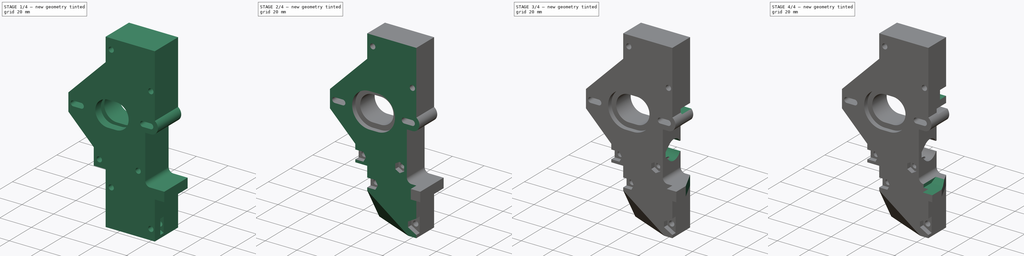
[diagram: build sequence overview — one tinted view per stage of 4, left to right]
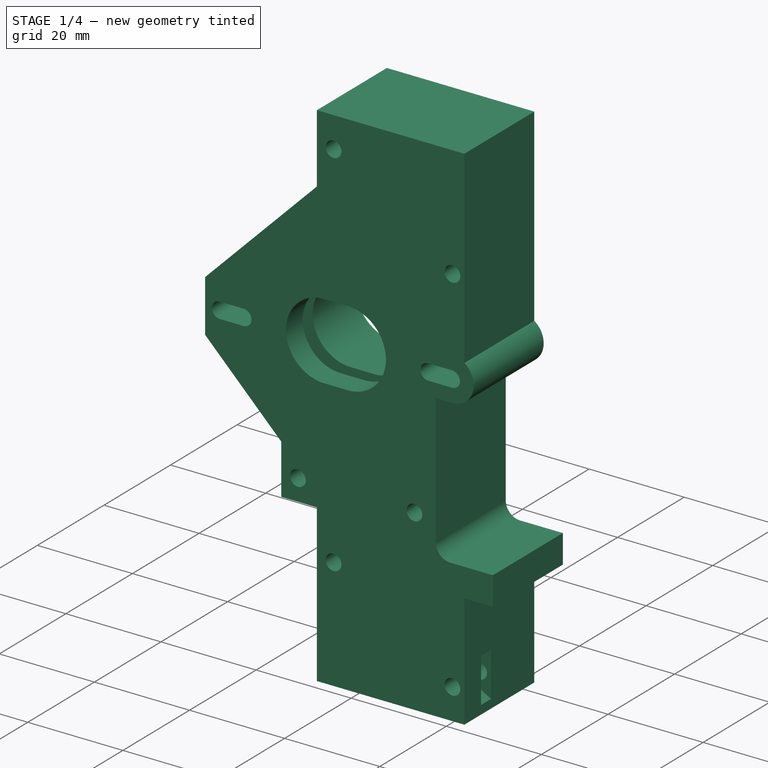
[diagram: stage 1 of 4 — iso view after this stage's code; geometry added in this stage tinted green]
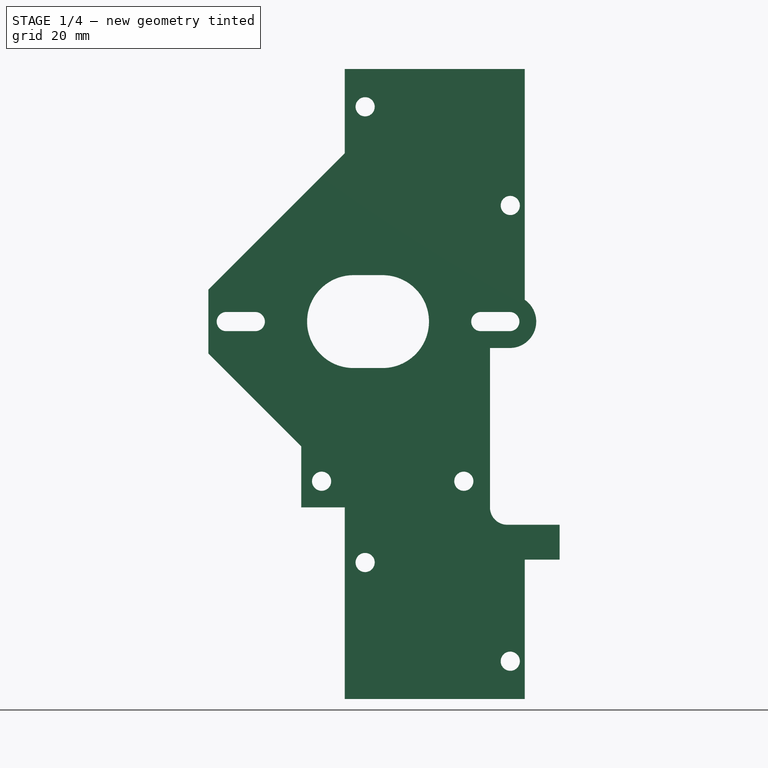
[diagram: stage 1 of 4 — front view after this stage's code; geometry added in this stage tinted green]
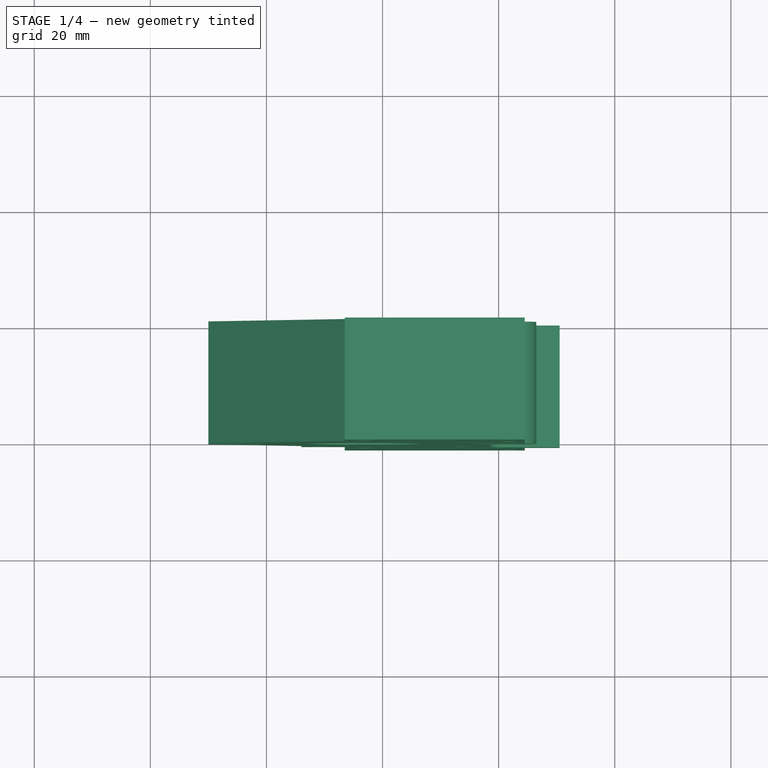
[diagram: stage 1 of 4 — top view after this stage's code; geometry added in this stage tinted green]
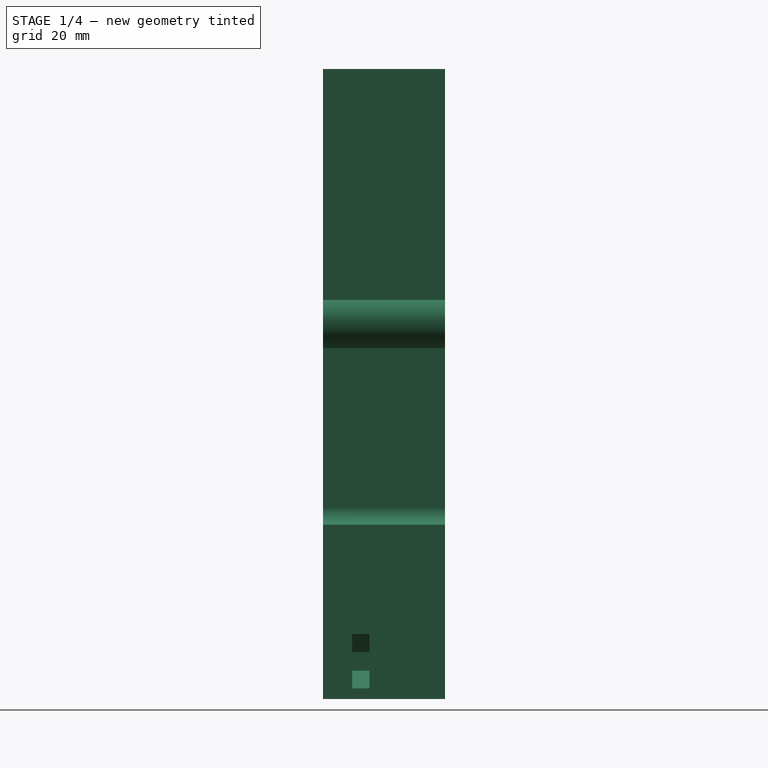
[diagram: stage 1 of 4 — right view after this stage's code; geometry added in this stage tinted green]
FCSTD DOCUMENT  (FreeCAD 0.17R13541 (Git))
Label: 12_473_x-motor-bracket
License: All rights reserved
LicenseURL: http://en.wikipedia.org/wiki/All_rights_reserved
objects: Sketcher::SketchObject×10, PartDesign::Pocket×8, PartDesign::Pad×1, PartDesign::Body×1, Spreadsheet::Sheet×1
note: 29 computed .brp shape members not serialized (recipe doc carries the construction recipe); baked Part::Feature solids carry a one-line shape summary decoded from their .brp

FEATURE [Sketcher::SketchObject] Sketch  label="ProfileReference"
  MapMode = 5
  Placement = pos=(0,0,0) rot=(1,0,0;1.5708rad)
  Support = -> [XZ_Plane]
  expr: Constraints[48] = 4.5499999999999998
  expr: Constraints[27] = 24.427 + 19.445
  expr: Constraints[26] = -24.427 + 2.5
  sketch-geometry (34):
    g0: ArcOfCircle CenterX=0 CenterY=0 CenterZ=0 NormalX=0 NormalY=0 NormalZ=1 AngleXU=0 Radius=8 StartAngle=4.71239 EndAngle=7.85398
    g1: ArcOfCircle CenterX=-5 CenterY=0 CenterZ=0 NormalX=0 NormalY=0 NormalZ=1 AngleXU=0 Radius=8 StartAngle=1.5708 EndAngle=4.71239
    g2: LineSegment StartX=4e-12 StartY=8 StartZ=0 EndX=-5 EndY=8 EndZ=0
    g3: LineSegment StartX=2e-12 StartY=-8 StartZ=0 EndX=-5 EndY=-8 EndZ=0
    g4: ArcOfCircle CenterX=16.945 CenterY=0 CenterZ=0 NormalX=0 NormalY=0 NormalZ=1 AngleXU=0 Radius=1.5 StartAngle=1.5708 EndAngle=4.71239
    g5: ArcOfCircle CenterX=21.945 CenterY=0 CenterZ=0 NormalX=0 NormalY=0 NormalZ=1 AngleXU=0 Radius=1.5 StartAngle=4.71239 EndAngle=7.85398
    g6: LineSegment StartX=16.945 StartY=-1.5 StartZ=0 EndX=21.945 EndY=-1.5 EndZ=0
    g7: LineSegment StartX=16.945 StartY=1.5 StartZ=0 EndX=21.945 EndY=1.5 EndZ=0
    g8: ArcOfCircle CenterX=-26.927 CenterY=0 CenterZ=0 NormalX=0 NormalY=0 NormalZ=1 AngleXU=0 Radius=1.5 StartAngle=1.5708 EndAngle=4.71239
    g9: ArcOfCircle CenterX=-21.927 CenterY=0 CenterZ=0 NormalX=0 NormalY=0 NormalZ=1 AngleXU=0 Radius=1.5 StartAngle=4.71239 EndAngle=7.85398
    g10: LineSegment StartX=-26.927 StartY=-1.5 StartZ=0 EndX=-21.927 EndY=-1.5 EndZ=0
    g11: LineSegment StartX=-26.927 StartY=1.5 StartZ=0 EndX=-21.927 EndY=1.5 EndZ=0
    g12: Circle CenterX=22 CenterY=20 CenterZ=0 NormalX=0 NormalY=0 NormalZ=1 AngleXU=0 Radius=1.55
    g13: Circle CenterX=-3 CenterY=37 CenterZ=0 NormalX=0 NormalY=0 NormalZ=1 AngleXU=0 Radius=1.55
    g14: Circle CenterX=-10.5 CenterY=-27.5 CenterZ=0 NormalX=0 NormalY=0 NormalZ=1 AngleXU=0 Radius=1.55
    g15: Circle CenterX=14 CenterY=-27.5 CenterZ=0 NormalX=0 NormalY=0 NormalZ=1 AngleXU=0 Radius=1.55
    g16: Circle CenterX=-3 CenterY=-41.5 CenterZ=0 NormalX=0 NormalY=0 NormalZ=1 AngleXU=0 Radius=1.55
    g17: Circle CenterX=22 CenterY=-58.5 CenterZ=0 NormalX=0 NormalY=0 NormalZ=1 AngleXU=0 Radius=1.55
    g18: ArcOfCircle CenterX=21.945 CenterY=0 CenterZ=0 NormalX=0 NormalY=0 NormalZ=1 AngleXU=0 Radius=4.55 StartAngle=4.71239 EndAngle=7.25774
    g19: LineSegment StartX=18.5 StartY=-4.55 StartZ=0 EndX=18.5 EndY=-32 EndZ=0
    g20: LineSegment StartX=18.5 StartY=-4.55 StartZ=0 EndX=21.945 EndY=-4.55 EndZ=0
    g21: ArcOfCircle CenterX=21.5 CenterY=-32 CenterZ=0 NormalX=0 NormalY=0 NormalZ=1 AngleXU=0 Radius=3 StartAngle=3.14159 EndAngle=4.71239
    g22: LineSegment StartX=21.5 StartY=-35 StartZ=0 EndX=24.5 EndY=-35 EndZ=0
    g23: LineSegment StartX=24.5 StartY=-35 StartZ=0 EndX=24.5 EndY=-65 EndZ=0
    g24: LineSegment StartX=24.5 StartY=-65 StartZ=0 EndX=-6.5 EndY=-65 EndZ=0
    g25: LineSegment StartX=-6.5 StartY=-65 StartZ=0 EndX=-6.5 EndY=-32 EndZ=0
    g26: LineSegment StartX=-6.5 StartY=-32 StartZ=0 EndX=-14 EndY=-32 EndZ=0
    g27: LineSegment StartX=-14 StartY=-32 StartZ=0 EndX=-14 EndY=-21.5 EndZ=0
    g28: LineSegment StartX=-30 StartY=5.5 StartZ=0 EndX=-30 EndY=-5.5 EndZ=0
    g29: LineSegment StartX=-14 StartY=-21.5 StartZ=0 EndX=-30 EndY=-5.5 EndZ=0
    g30: LineSegment StartX=-30 StartY=5.5 StartZ=0 EndX=-6.5 EndY=29 EndZ=0
    g31: LineSegment StartX=-6.5 StartY=29 StartZ=0 EndX=-6.5 EndY=43.5 EndZ=0
    g32: LineSegment StartX=-6.5 StartY=43.5 StartZ=0 EndX=24.5 EndY=43.5 EndZ=0
    g33: LineSegment StartX=24.5 StartY=43.5 StartZ=0 EndX=24.5 EndY=3.7649 EndZ=0
  constraints (93):
    c: Tangent(g0,g3) = 1.5708
    c: Tangent(g0,g2) = -1.5708
    c: Tangent(g2,g1) = -1.5708
    c: Tangent(g3,g1) = 1.5708
    c: Horizontal(g2)
    c: Equal(g0,g1)
    c: Coincident(g0,g-1)
    c: Radius(g0) = 8
    c: Distance(g2) = 5
    c: Tangent(g4,g7) = 1.5708
    c: Tangent(g4,g6) = -1.5708
    c: Tangent(g6,g5) = -1.5708
    c: Tangent(g7,g5) = 1.5708
    c: Horizontal(g6)
    c: Equal(g4,g5)
    c: Tangent(g8,g11) = 1.5708
    c: Tangent(g8,g10) = -1.5708
    c: Tangent(g10,g9) = -1.5708
    c: Tangent(g11,g9) = 1.5708
    c: Horizontal(g10)
    c: Equal(g8,g9)
    c: Equal(g11,g7)
    c: Radius(g9) = 1.5
    c: Equal(g9,g5)
    c: PointOnObject(g5,g-1)
    c: PointOnObject(g8,g-1)
    c: DistanceX(g-2,g9) = -21.927
    c: Distance(g9,g5) = 43.872
    c: Distance(g7) = 5
    c: DistanceX(g-2,g12) = 22
    c: DistanceY(g-1,g12) = 20
    c: DistanceX(g-2,g13) = -3
    c: DistanceY(g-1,g13) = 37
    c: DistanceY(g-1,g15) = -27.5
    c: DistanceY(g-1,g14) = -27.5
    c: DistanceX(g-2,g15) = 14
    c: DistanceX(g-2,g14) = -10.5
    c: DistanceY(g-1,g17) = -58.5
    c: DistanceX(g-2,g17) = 22
    c: DistanceX(g-2,g16) = -3
    c: DistanceY(g-1,g16) = -41.5
    c: Radius(g13) = 1.55
    c: Equal(g13,g12)
    c: Equal(g13,g15)
    c: Equal(g13,g14)
    c: Equal(g13,g16)
    c: Equal(g13,g17)
    c: Coincident(g5,g18)
    c: Radius(g18) = 4.55
    c: Vertical(g19)
    c: DistanceX(g-2,g19) = 18.5
    c: Horizontal(g20)
    c: Coincident(g19,g20)
    c: Tangent(g20,g18) = -1.5708
    c: Tangent(g21,g19) = -1.5708
    c: Radius(g21) = 3
    c: Horizontal(g22)
    c: Tangent(g21,g22) = -1.5708
    c: DistanceY(g-1,g22) = -35
    c: Vertical(g23)
    c: Coincident(g22,g23)
    c: DistanceX(g-2,g23) = 24.5
    c: Coincident(g24,g23)
    c: Horizontal(g24)
    c: DistanceY(g-1,g24) = -65
    c: Coincident(g24,g25)
    c: Vertical(g25)
    c: DistanceX(g-2,g24) = -6.5
    c: Horizontal(g26)
    c: Coincident(g25,g26)
    c: DistanceY(g-1,g26) = -32
    c: Vertical(g27)
    c: Coincident(g27,g26)
    c: DistanceX(g-2,g26) = -14
    c: DistanceY(g-1,g27) = -21.5
    c: Vertical(g28)
    c: DistanceX(g-2,g28) = -30
    c: Coincident(g29,g27)
    c: Coincident(g29,g28)
    c: Angle(g29,g27) = 2.35619
    c: Symmetric(g28,g28,g-1)
    c: Coincident(g28,g30)
    c: Angle(g28,g30) = 2.35619
    c: DistanceX(g-2,g30) = -6.5
    c: Coincident(g30,g31)
    c: Vertical(g31)
    c: Coincident(g32,g33)
    c: Coincident(g31,g32)
    c: Horizontal(g32)
    c: Vertical(g33)
    c: DistanceY(g-1,g31) = 43.5
    c: DistanceX(g-2,g32) = 24.5
    c: Coincident(g33,g18)
FEATURE [Sketcher::SketchObject] Sketch001
  MapMode = 5
  Placement = pos=(0,0,0) rot=(1,0,0;1.5708rad)
  Support = -> [XZ_Plane]
  expr: Constraints[37] = sheet01.hc6y
  expr: Constraints[35] = sheet01.hc4x
  expr: Constraints[39] = sheet01.hc5x
  expr: Constraints[34] = sheet01.hc3y
  expr: Constraints[36] = sheet01.hc3x
  expr: Constraints[29] = sheet01.hc2x
  expr: Constraints[32] = sheet01.hc1y
  expr: Constraints[26] = sheet01.stepboltdia * -1 * 0.5
  expr: Constraints[27] = sheet01.stepboltdia
  expr: Constraints[22] = sheet01.m3clear
  expr: Constraints[41] = sheet01.m3clear
  expr: Constraints[30] = sheet01.hc2y
  expr: Constraints[31] = sheet01.hc1x
  expr: Constraints[28] = sheet01.tensiondx
  expr: Constraints[7] = sheet01.pulleyclear
  expr: Constraints[40] = sheet01.hc5y
  expr: Constraints[48] = 4.5499999999999998
  expr: Constraints[8] = sheet01.tensiondx
  sketch-geometry (36):
    g0: ArcOfCircle CenterX=0 CenterY=0 CenterZ=0 NormalX=0 NormalY=0 NormalZ=1 AngleXU=0 Radius=8 StartAngle=4.71239 EndAngle=7.85398
    g1: ArcOfCircle CenterX=-5 CenterY=0 CenterZ=0 NormalX=0 NormalY=0 NormalZ=1 AngleXU=0 Radius=8 StartAngle=1.5708 EndAngle=4.71239
    g2: LineSegment StartX=4e-12 StartY=8 StartZ=0 EndX=-5 EndY=8 EndZ=0
    g3: LineSegment StartX=2e-12 StartY=-8 StartZ=0 EndX=-5 EndY=-8 EndZ=0
    g4: ArcOfCircle CenterX=16.9203 CenterY=0 CenterZ=0 NormalX=0 NormalY=0 NormalZ=1 AngleXU=0 Radius=1.65 StartAngle=1.5708 EndAngle=4.71239
    g5: ArcOfCircle CenterX=21.9203 CenterY=0 CenterZ=0 NormalX=0 NormalY=0 NormalZ=1 AngleXU=0 Radius=1.65 StartAngle=4.71239 EndAngle=7.85398
    g6: LineSegment StartX=16.9203 StartY=-1.65 StartZ=0 EndX=21.9203 EndY=-1.65 EndZ=0
    g7: LineSegment StartX=16.9203 StartY=1.65 StartZ=0 EndX=21.9203 EndY=1.65 EndZ=0
    g8: ArcOfCircle CenterX=-26.9203 CenterY=0 CenterZ=0 NormalX=0 NormalY=0 NormalZ=1 AngleXU=0 Radius=1.65 StartAngle=1.5708 EndAngle=4.71239
    g9: ArcOfCircle CenterX=-21.9203 CenterY=0 CenterZ=0 NormalX=0 NormalY=0 NormalZ=1 AngleXU=0 Radius=1.65 StartAngle=4.71239 EndAngle=7.85398
    g10: LineSegment StartX=-26.9203 StartY=-1.65 StartZ=0 EndX=-21.9203 EndY=-1.65 EndZ=0
    g11: LineSegment StartX=-26.9203 StartY=1.65 StartZ=0 EndX=-21.9203 EndY=1.65 EndZ=0
    g12: Circle CenterX=22 CenterY=20 CenterZ=0 NormalX=0 NormalY=0 NormalZ=1 AngleXU=0 Radius=1.65
    g13: Circle CenterX=-3 CenterY=37 CenterZ=0 NormalX=0 NormalY=0 NormalZ=1 AngleXU=0 Radius=1.65
    g14: Circle CenterX=-10.5 CenterY=-27.5 CenterZ=0 NormalX=0 NormalY=0 NormalZ=1 AngleXU=0 Radius=1.65
    g15: Circle CenterX=14 CenterY=-27.5 CenterZ=0 NormalX=0 NormalY=0 NormalZ=1 AngleXU=0 Radius=1.65
    g16: Circle CenterX=-3 CenterY=-41.5 CenterZ=0 NormalX=0 NormalY=0 NormalZ=1 AngleXU=0 Radius=1.65
    g17: Circle CenterX=22 CenterY=-58.5 CenterZ=0 NormalX=0 NormalY=0 NormalZ=1 AngleXU=0 Radius=1.65
    g18: ArcOfCircle CenterX=21.9203 CenterY=0 CenterZ=0 NormalX=0 NormalY=0 NormalZ=1 AngleXU=0 Radius=4.55 StartAngle=4.71239 EndAngle=7.25117
    g19: LineSegment StartX=18.5 StartY=-4.55 StartZ=0 EndX=18.5 EndY=-32 EndZ=0
    g20: LineSegment StartX=18.5 StartY=-4.55 StartZ=0 EndX=21.9203 EndY=-4.55 EndZ=0
    g21: ArcOfCircle CenterX=21.5 CenterY=-32 CenterZ=0 NormalX=0 NormalY=0 NormalZ=1 AngleXU=0 Radius=3 StartAngle=3.14159 EndAngle=4.71239
    g22: LineSegment StartX=21.5 StartY=-35 StartZ=0 EndX=30.5 EndY=-35 EndZ=0
    g23: LineSegment StartX=24.5 StartY=-41 StartZ=0 EndX=24.5 EndY=-65 EndZ=0
    g24: LineSegment StartX=24.5 StartY=-65 StartZ=0 EndX=-6.5 EndY=-65 EndZ=0
    g25: LineSegment StartX=-6.5 StartY=-65 StartZ=0 EndX=-6.5 EndY=-32 EndZ=0
    g26: LineSegment StartX=-6.5 StartY=-32 StartZ=0 EndX=-14 EndY=-32 EndZ=0
    g27: LineSegment StartX=-14 StartY=-32 StartZ=0 EndX=-14 EndY=-21.5 EndZ=0
    g28: LineSegment StartX=-30 StartY=5.5 StartZ=0 EndX=-30 EndY=-5.5 EndZ=0
    g29: LineSegment StartX=-14 StartY=-21.5 StartZ=0 EndX=-30 EndY=-5.5 EndZ=0
    g30: LineSegment StartX=-30 StartY=5.5 StartZ=0 EndX=-6.5 EndY=29 EndZ=0
    g31: LineSegment StartX=-6.5 StartY=29 StartZ=0 EndX=-6.5 EndY=43.5 EndZ=0
    g32: LineSegment StartX=-6.5 StartY=43.5 StartZ=0 EndX=24.5 EndY=43.5 EndZ=0
    g33: LineSegment StartX=24.5 StartY=43.5 StartZ=0 EndX=24.5 EndY=3.74803 EndZ=0
    g34: LineSegment StartX=24.5 StartY=-41 StartZ=0 EndX=30.5 EndY=-41 EndZ=0
    g35: LineSegment StartX=30.5 StartY=-41 StartZ=0 EndX=30.5 EndY=-35 EndZ=0
  constraints (99):
    c: Tangent(g0,g3) = 1.5708
    c: Tangent(g0,g2) = -1.5708
    c: Tangent(g2,g1) = -1.5708
    c: Tangent(g3,g1) = 1.5708
    c: Horizontal(g2)
    c: Equal(g0,g1)
    c: Coincident(g0,g-1)
    c: Radius(g0) = 8
    c: Distance(g2) = 5
    c: Tangent(g4,g7) = 1.5708
    c: Tangent(g4,g6) = -1.5708
    c: Tangent(g6,g5) = -1.5708
    c: Tangent(g7,g5) = 1.5708
    c: Horizontal(g6)
    c: Equal(g4,g5)
    c: Tangent(g8,g11) = 1.5708
    c: Tangent(g8,g10) = -1.5708
    c: Tangent(g10,g9) = -1.5708
    c: Tangent(g11,g9) = 1.5708
    c: Horizontal(g10)
    c: Equal(g8,g9)
    c: Equal(g11,g7)
    c: Radius(g9) = 1.65
    c: Equal(g9,g5)
    c: PointOnObject(g5,g-1)
    c: PointOnObject(g8,g-1)
    c: DistanceX(g-2,g9) = -21.9203
    c: Distance(g9,g5) = 43.8406
    c: Distance(g7) = 5
    c: DistanceX(g-2,g12) = 22
    c: DistanceY(g-1,g12) = 20
    c: DistanceX(g-2,g13) = -3
    c: DistanceY(g-1,g13) = 37
    c: DistanceY(g-1,g15) = -27.5
    c: DistanceY(g-1,g14) = -27.5
    c: DistanceX(g-2,g15) = 14
    c: DistanceX(g-2,g14) = -10.5
    c: DistanceY(g-1,g17) = -58.5
    c: DistanceX(g-2,g17) = 22
    c: DistanceX(g-2,g16) = -3
    c: DistanceY(g-1,g16) = -41.5
    c: Radius(g13) = 1.65
    c: Equal(g13,g12)
    c: Equal(g13,g15)
    c: Equal(g13,g14)
    c: Equal(g13,g16)
    c: Equal(g13,g17)
    c: Coincident(g5,g18)
    c: Radius(g18) = 4.55
    c: Vertical(g19)
    c: DistanceX(g-2,g19) = 18.5
    c: Horizontal(g20)
    c: Coincident(g19,g20)
    c: Tangent(g20,g18) = -1.5708
    c: Tangent(g21,g19) = -1.5708
    c: Radius(g21) = 3
    c: Horizontal(g22)
    c: Tangent(g21,g22) = -1.5708
    c: DistanceY(g-1,g22) = -35
    c: Vertical(g23)
    c: DistanceX(g-2,g23) = 24.5
    c: Coincident(g24,g23)
    c: Horizontal(g24)
    c: DistanceY(g-1,g24) = -65
    c: Coincident(g24,g25)
    c: Vertical(g25)
    c: DistanceX(g-2,g24) = -6.5
    c: Horizontal(g26)
    c: Coincident(g25,g26)
    c: DistanceY(g-1,g26) = -32
    c: Vertical(g27)
    c: Coincident(g27,g26)
    c: DistanceX(g-2,g26) = -14
    c: DistanceY(g-1,g27) = -21.5
    c: Vertical(g28)
    c: DistanceX(g-2,g28) = -30
    c: Coincident(g29,g27)
    c: Coincident(g29,g28)
    c: Angle(g29,g27) = 2.35619
    c: Symmetric(g28,g28,g-1)
    c: Coincident(g28,g30)
    c: Angle(g28,g30) = 2.35619
    c: DistanceX(g-2,g30) = -6.5
    c: Coincident(g30,g31)
    c: Vertical(g31)
    c: Coincident(g32,g33)
    c: Coincident(g31,g32)
    c: Horizontal(g32)
    c: Vertical(g33)
    c: DistanceY(g-1,g31) = 43.5
    c: DistanceX(g-2,g32) = 24.5
    c: Coincident(g33,g18)
    c: Distance(g22,g23) = 6
    c: Distance(g23,g22) = 6
    c: Coincident(g34,g35)
    c: Coincident(g35,g22)
    c: Coincident(g34,g23)
    c: Horizontal(g34)
    c: Vertical(g35)
FEATURE [PartDesign::Pad] Pad  label="MainExtrusion"
  Length = 21
  Length2 = 100
  Placement = pos=(0,0,0) rot=(1,0,0;1.5708rad)
  Profile = -> Sketch001
  Type = 0
  expr: Length = sheet01.prtz
FEATURE [Sketcher::SketchObject] Sketch002
  AttachmentOffset = pos=(0,0,16) rot=(0,0,1;0rad)
  MapMode = 5
  Placement = pos=(0,-16,-2e-12) rot=(1,0,0;1.5708rad)
  Support = -> [XZ_Plane]
  expr: Constraints[106] = sheet01.tensiondx
  expr: Constraints[74] = sheet01.m3nutspanner
  expr: Constraints[115] = sheet01.hc6y
  expr: Constraints[114] = sheet01.hc6x
  expr: Constraints[110] = sheet01.hc3x
  expr: Constraints[107] = sheet01.hc4x
  expr: Constraints[108] = sheet01.hc4y
  expr: Constraints[113] = sheet01.hc5x
  expr: AttachmentOffset.Base.z = sheet01.mainbodythickness
  expr: Constraints[112] = sheet01.hc5y
  expr: Constraints[109] = sheet01.hc3y
  sketch-geometry (41):
    g0: LineSegment StartX=-8.88342 StartY=-24.7 StartZ=0 EndX=-12.1166 EndY=-24.7 EndZ=0
    g1: LineSegment [constr] StartX=-12.1166 StartY=-24.7 StartZ=0 EndX=-13.7332 EndY=-27.5 EndZ=0
    g2: LineSegment [constr] StartX=-13.7332 StartY=-27.5 StartZ=0 EndX=-12.1166 EndY=-30.3 EndZ=0
    g3: LineSegment StartX=-12.1166 StartY=-30.3 StartZ=0 EndX=-8.88342 EndY=-30.3 EndZ=0
    g4: LineSegment StartX=-8.88342 StartY=-30.3 StartZ=0 EndX=-7.26684 EndY=-27.5 EndZ=0
    g5: LineSegment StartX=-7.26684 StartY=-27.5 StartZ=0 EndX=-8.88342 EndY=-24.7 EndZ=0
    g6: Circle [constr] CenterX=-10.5 CenterY=-27.5 CenterZ=0 NormalX=0 NormalY=0 NormalZ=1 AngleXU=0 Radius=3.23316
    g7: LineSegment StartX=14 StartY=-24.2668 StartZ=0 EndX=11.2 EndY=-25.8834 EndZ=0
    g8: LineSegment StartX=11.2 StartY=-25.8834 StartZ=0 EndX=11.2 EndY=-29.1166 EndZ=0
    g9: LineSegment StartX=11.2 StartY=-29.1166 StartZ=0 EndX=14 EndY=-30.7332 EndZ=0
    g10: LineSegment StartX=14 StartY=-30.7332 StartZ=0 EndX=16.8 EndY=-29.1166 EndZ=0
    g11: LineSegment StartX=16.8 StartY=-29.1166 StartZ=0 EndX=16.8 EndY=-25.8834 EndZ=0
    g12: LineSegment StartX=16.8 StartY=-25.8834 StartZ=0 EndX=14 EndY=-24.2668 EndZ=0
    g13: Circle [constr] CenterX=14 CenterY=-27.5 CenterZ=0 NormalX=0 NormalY=0 NormalZ=1 AngleXU=0 Radius=3.23316
    g14: LineSegment StartX=22 StartY=-55.2668 StartZ=0 EndX=19.2 EndY=-56.8834 EndZ=0
    g15: LineSegment StartX=19.2 StartY=-56.8834 StartZ=0 EndX=19.2 EndY=-60.1166 EndZ=0
    g16: LineSegment StartX=19.2 StartY=-60.1166 StartZ=0 EndX=22 EndY=-61.7332 EndZ=0
    g17: LineSegment [constr] StartX=22 StartY=-61.7332 StartZ=0 EndX=24.8 EndY=-60.1166 EndZ=0
    g18: LineSegment [constr] StartX=24.8 StartY=-60.1166 StartZ=0 EndX=24.8 EndY=-56.8834 EndZ=0
    g19: LineSegment [constr] StartX=24.8 StartY=-56.8834 StartZ=0 EndX=22 EndY=-55.2668 EndZ=0
    g20: Circle [constr] CenterX=22 CenterY=-58.5 CenterZ=0 NormalX=0 NormalY=0 NormalZ=1 AngleXU=0 Radius=3.23316
    g21: LineSegment StartX=-1.38342 StartY=-38.7 StartZ=0 EndX=-4.61658 EndY=-38.7 EndZ=0
    g22: LineSegment [constr] StartX=-4.61658 StartY=-38.7 StartZ=0 EndX=-6.23316 EndY=-41.5 EndZ=0
    g23: LineSegment [constr] StartX=-6.23316 StartY=-41.5 StartZ=0 EndX=-4.61658 EndY=-44.3 EndZ=0
    g24: LineSegment StartX=-4.61658 StartY=-44.3 StartZ=0 EndX=-1.38342 EndY=-44.3 EndZ=0
    g25: LineSegment StartX=-1.38342 StartY=-44.3 StartZ=0 EndX=0.233162 EndY=-41.5 EndZ=0
    g26: LineSegment StartX=0.233162 StartY=-41.5 StartZ=0 EndX=-1.38342 EndY=-38.7 EndZ=0
    g27: Circle [constr] CenterX=-3 CenterY=-41.5 CenterZ=0 NormalX=0 NormalY=0 NormalZ=1 AngleXU=0 Radius=3.23316
    g28: LineSegment StartX=-12.1166 StartY=-24.7 StartZ=0 EndX=-14.2668 EndY=-24.7 EndZ=0
    g29: LineSegment StartX=-14.2668 StartY=-24.7 StartZ=0 EndX=-14.2668 EndY=-30.3 EndZ=0
    g30: LineSegment StartX=-14.2668 StartY=-30.3 StartZ=0 EndX=-12.1166 EndY=-30.3 EndZ=0
    g31: LineSegment StartX=-4.61658 StartY=-38.7 StartZ=0 EndX=-6.76684 EndY=-38.7 EndZ=0
    g32: LineSegment StartX=-6.76684 StartY=-38.7 StartZ=0 EndX=-6.76684 EndY=-44.3 EndZ=0
    g33: LineSegment StartX=-6.76684 StartY=-44.3 StartZ=0 EndX=-4.61658 EndY=-44.3 EndZ=0
    g34: LineSegment StartX=22 StartY=-55.2668 StartZ=0 EndX=26.2 EndY=-52.842 EndZ=0
    g35: LineSegment StartX=26.2 StartY=-52.842 StartZ=0 EndX=26.2 EndY=-64.158 EndZ=0
    g36: LineSegment StartX=26.2 StartY=-64.158 StartZ=0 EndX=22 EndY=-61.7332 EndZ=0
    g37: ArcOfCircle CenterX=0 CenterY=0 CenterZ=0 NormalX=0 NormalY=0 NormalZ=1 AngleXU=0 Radius=11 StartAngle=4.71239 EndAngle=7.85398
    g38: ArcOfCircle CenterX=-5 CenterY=0 CenterZ=0 NormalX=0 NormalY=0 NormalZ=1 AngleXU=0 Radius=11 StartAngle=1.5708 EndAngle=4.71239
    g39: LineSegment StartX=-1e-12 StartY=11 StartZ=0 EndX=-5 EndY=11 EndZ=0
    g40: LineSegment StartX=-1e-12 StartY=-11 StartZ=0 EndX=-5 EndY=-11 EndZ=0
  constraints (105):
    c: Coincident(g0,g1)
    c: Coincident(g1,g2)
    c: Coincident(g2,g3)
    c: Coincident(g3,g4)
    c: Coincident(g4,g5)
    c: Coincident(g5,g0)
    c: Equal(g0, g1-g5) x5
    c: PointOnObject(g0,g6)
    c: PointOnObject(g1,g6)
    c: PointOnObject(g2,g6)
    c: PointOnObject(g3,g6)
    c: PointOnObject(g4,g6)
    c: PointOnObject(g5,g6)
    c: Coincident(g7,g8)
    c: Coincident(g8,g9)
    c: Coincident(g9,g10)
    c: Coincident(g10,g11)
    c: Coincident(g11,g12)
    c: Coincident(g12,g7)
    c: Equal(g7, g8-g12) x5
    c: PointOnObject(g7,g13)
    c: PointOnObject(g8,g13)
    c: PointOnObject(g9,g13)
    c: PointOnObject(g10,g13)
    c: PointOnObject(g11,g13)
    c: PointOnObject(g12,g13)
    c: Coincident(g14,g15)
    c: Coincident(g15,g16)
    c: Coincident(g16,g17)
    c: Coincident(g17,g18)
    c: Coincident(g18,g19)
    c: Coincident(g19,g14)
    c: Equal(g14,g15)
    c: Equal(g14,g16)
    c: Equal(g14,g18)
    c: Equal(g14,g19)
    c: PointOnObject(g14,g20)
    c: PointOnObject(g15,g20)
    c: PointOnObject(g16,g20)
    c: PointOnObject(g17,g20)
    c: PointOnObject(g18,g20)
    c: PointOnObject(g19,g20)
    c: Coincident(g21,g22)
    c: Coincident(g22,g23)
    c: Coincident(g23,g24)
    c: Coincident(g24,g25)
    c: Coincident(g25,g26)
    c: Coincident(g26,g21)
    c: Equal(g21, g22-g26) x5
    c: PointOnObject(g21,g27)
    c: PointOnObject(g22,g27)
    c: PointOnObject(g23,g27)
    c: PointOnObject(g24,g27)
    c: PointOnObject(g25,g27)
    c: PointOnObject(g26,g27)
    c: Equal(g6,g27)
    c: Equal(g27,g13)
    c: Equal(g13,g20)
    c: Vertical(g8)
    c: Vertical(g15)
    c: Horizontal(g21)
    c: Horizontal(g0)
    c: Distance(g0,g3) = 5.6
    c: Coincident(g28,g29)
    c: Coincident(g29,g30)
    c: Coincident(g28,g0)
    c: Coincident(g30,g2)
    c: Horizontal(g28)
    c: Horizontal(g30)
    c: Coincident(g31,g32)
    c: Coincident(g32,g33)
    c: Coincident(g31,g21)
    c: Coincident(g33,g23)
    c: Horizontal(g33)
    c: Horizontal(g31)
    c: Coincident(g34,g35)
    c: Coincident(g35,g36)
    c: Parallel(g14,g34)
    c: Parallel(g16,g36)
    c: Coincident(g14,g34)
    c: Coincident(g36,g16)
    c: Tangent(g37,g40) = 1.5708
    c: Tangent(g37,g39) = -1.5708
    c: Tangent(g39,g38) = -1.5708
    c: Tangent(g40,g38) = 1.5708
    c: Horizontal(g39)
    c: Equal(g37,g38)
    c: Coincident(g-1,g37)
    c: Distance(g25,g32) = 7
    c: Vertical(g32)
    c: Distance(g14,g35) = 7
    c: Vertical(g35)
    c: Distance(g4,g29) = 7
    c: Radius(g37) = 11
    c: Distance(g-1,g38) = 5
    c: DistanceX(g-2,g13) = 14
    c: DistanceY(g-1,g13) = -27.5
    c: DistanceY(g-1,g6) = -27.5
    c: DistanceX(g-2,g6) = -10.5
    c: Vertical(g29)
    c: DistanceY(g-1,g27) = -41.5
    c: DistanceX(g-2,g27) = -3
    c: DistanceX(g-2,g20) = 22
    c: DistanceY(g-1,g20) = -58.5
    c: Equal(g17,g16)
FEATURE [PartDesign::Pocket] Pocket  label="NutTrapPocket"
  BaseFeature = -> Pad
  Length = 3
  Length2 = 100
  Placement = pos=(0,0,0) rot=(1,0,0;1.5708rad)
  Profile = -> Sketch002
  Type = 0
  expr: Length = sheet01.m3depth
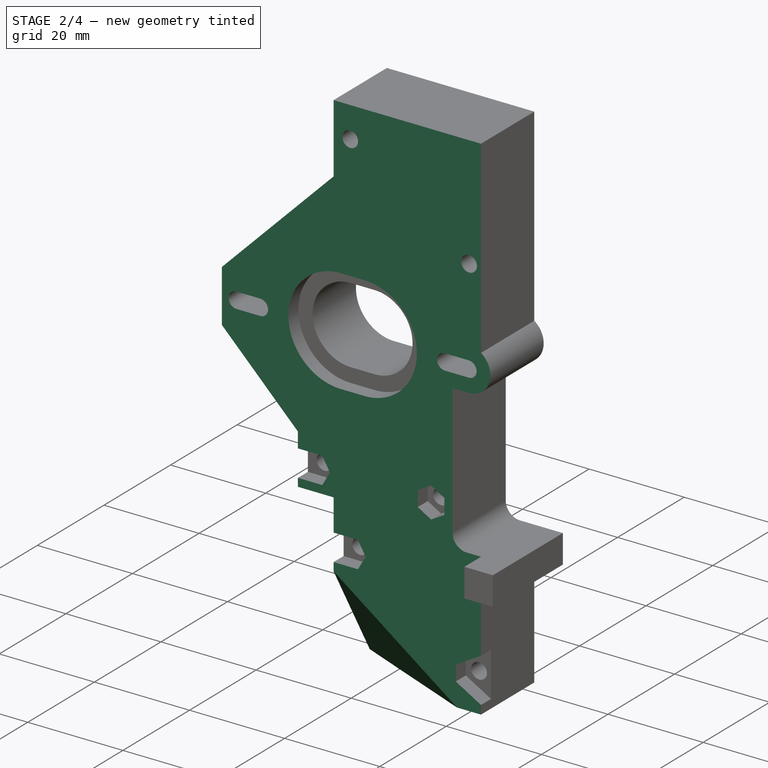
[diagram: stage 2 of 4 — iso view after this stage's code; geometry added in this stage tinted green]
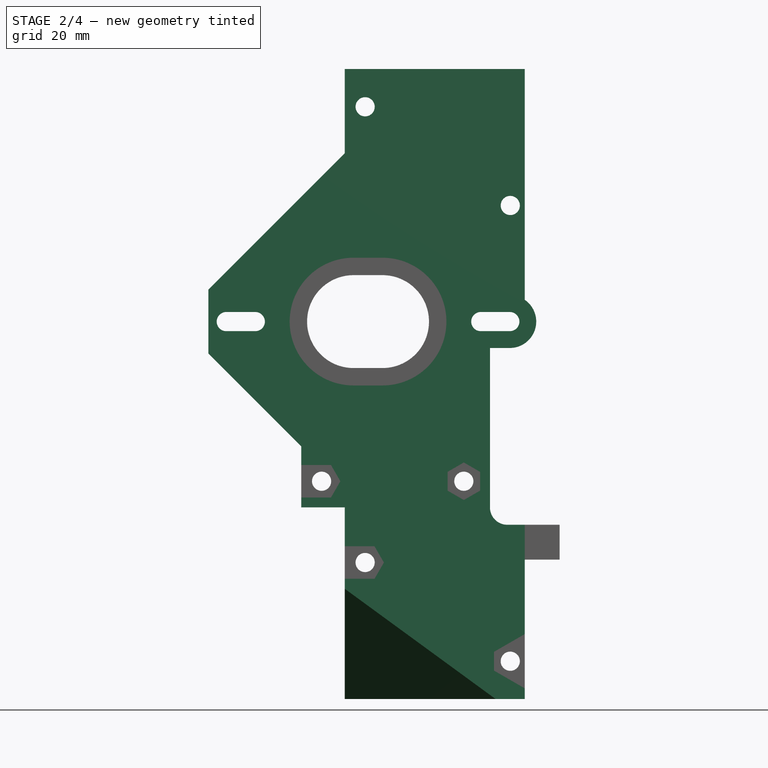
[diagram: stage 2 of 4 — front view after this stage's code; geometry added in this stage tinted green]
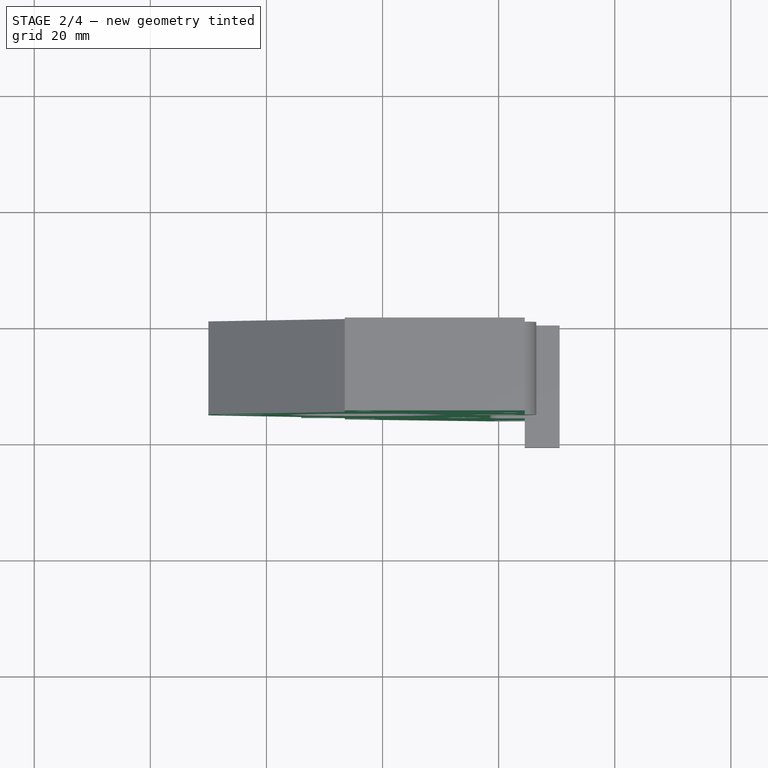
[diagram: stage 2 of 4 — top view after this stage's code; geometry added in this stage tinted green]
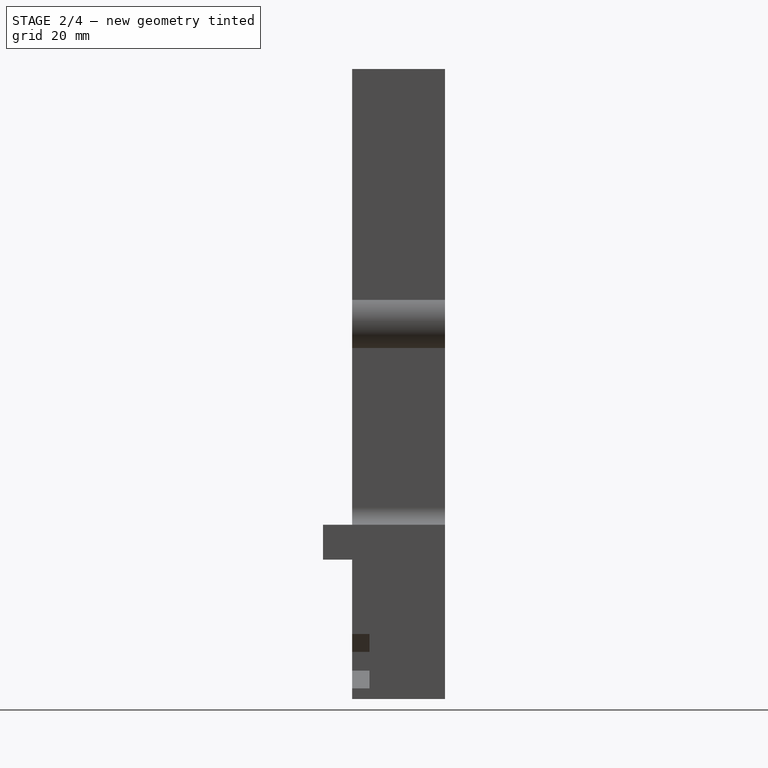
[diagram: stage 2 of 4 — right view after this stage's code; geometry added in this stage tinted green]
FEATURE [Sketcher::SketchObject] Sketch003
  AttachmentOffset = pos=(0,0,21) rot=(0,0,1;0rad)
  MapMode = 5
  Placement = pos=(0,-21,-2e-12) rot=(1,0,0;1.5708rad)
  Support = -> [XZ_Plane]
  expr: Constraints[45] = sheet01.stepboltdia / 2
  expr: Constraints[0] = 4.5499999999999998
  sketch-geometry (16):
    g0: ArcOfCircle CenterX=21.9203 CenterY=0 CenterZ=0 NormalX=0 NormalY=0 NormalZ=1 AngleXU=0 Radius=4.55 StartAngle=4.71239 EndAngle=7.25117
    g1: LineSegment StartX=18.5 StartY=-4.55 StartZ=0 EndX=18.5 EndY=-32 EndZ=0
    g2: LineSegment StartX=18.5 StartY=-4.55 StartZ=0 EndX=21.9203 EndY=-4.55 EndZ=0
    g3: ArcOfCircle CenterX=21.5 CenterY=-32 CenterZ=0 NormalX=0 NormalY=0 NormalZ=1 AngleXU=0 Radius=3 StartAngle=3.14159 EndAngle=4.71239
    g4: LineSegment StartX=21.5 StartY=-35 StartZ=0 EndX=24.5 EndY=-35 EndZ=0
    g5: LineSegment StartX=24.5 StartY=-35 StartZ=0 EndX=24.5 EndY=-65 EndZ=0
    g6: LineSegment StartX=24.5 StartY=-65 StartZ=0 EndX=-6.5 EndY=-65 EndZ=0
    g7: LineSegment StartX=-6.5 StartY=-65 StartZ=0 EndX=-6.5 EndY=-32 EndZ=0
    g8: LineSegment StartX=-6.5 StartY=-32 StartZ=0 EndX=-14 EndY=-32 EndZ=0
    g9: LineSegment StartX=-14 StartY=-32 StartZ=0 EndX=-14 EndY=-21.5 EndZ=0
    g10: LineSegment StartX=-30 StartY=5.5 StartZ=0 EndX=-30 EndY=-5.5 EndZ=0
    g11: LineSegment StartX=-14 StartY=-21.5 StartZ=0 EndX=-30 EndY=-5.5 EndZ=0
    g12: LineSegment StartX=-30 StartY=5.5 StartZ=0 EndX=-6.5 EndY=29 EndZ=0
    g13: LineSegment StartX=-6.5 StartY=29 StartZ=0 EndX=-6.5 EndY=43.5 EndZ=0
    g14: LineSegment StartX=-6.5 StartY=43.5 StartZ=0 EndX=24.5 EndY=43.5 EndZ=0
    g15: LineSegment StartX=24.5 StartY=43.5 StartZ=0 EndX=24.5 EndY=3.74803 EndZ=0
  constraints (46):
    c: Radius(g0) = 4.55
    c: Vertical(g1)
    c: DistanceX(g-2,g1) = 18.5
    c: Horizontal(g2)
    c: Coincident(g1,g2)
    c: Tangent(g2,g0) = -1.5708
    c: Tangent(g3,g1) = -1.5708
    c: Radius(g3) = 3
    c: Horizontal(g4)
    c: Tangent(g3,g4) = -1.5708
    c: DistanceY(g-1,g4) = -35
    c: Vertical(g5)
    c: DistanceX(g-2,g5) = 24.5
    c: Coincident(g6,g5)
    c: Horizontal(g6)
    c: DistanceY(g-1,g6) = -65
    c: Coincident(g6,g7)
    c: Vertical(g7)
    c: DistanceX(g-2,g6) = -6.5
    c: Horizontal(g8)
    c: Coincident(g7,g8)
    c: DistanceY(g-1,g8) = -32
    c: Vertical(g9)
    c: Coincident(g9,g8)
    c: DistanceX(g-2,g8) = -14
    c: DistanceY(g-1,g9) = -21.5
    c: Vertical(g10)
    c: DistanceX(g-2,g10) = -30
    c: Coincident(g11,g9)
    c: Coincident(g11,g10)
    c: Angle(g11,g9) = 2.35619
    c: Symmetric(g10,g10,g-1)
    c: Coincident(g10,g12)
    c: Angle(g10,g12) = 2.35619
    c: DistanceX(g-2,g12) = -6.5
    c: Coincident(g12,g13)
    c: Vertical(g13)
    c: Coincident(g14,g15)
    c: Coincident(g13,g14)
    c: Horizontal(g14)
    c: Vertical(g15)
    c: DistanceY(g-1,g13) = 43.5
    c: DistanceX(g-2,g14) = 24.5
    c: Coincident(g15,g0)
    c: Coincident(g5,g4)
    c: DistanceX(g-2,g0) = 21.9203
FEATURE [PartDesign::Pocket] Pocket001  label="SurfaceCut"
  BaseFeature = -> Pocket
  Length = 5
  Length2 = 100
  Placement = pos=(0,0,0) rot=(1,0,0;1.5708rad)
  Profile = -> Sketch003
  Type = 0
  expr: Length = sheet01.prtz - sheet01.mainbodythickness
FEATURE [Sketcher::SketchObject] Sketch004
  AttachmentOffset = pos=(0,0,0) rot=(0,1,0;-0.939685rad)
  MapMode = 5
  Placement = pos=(0,0,0) rot=(0,1,0;5.3435rad)
  Support = -> [XY_Plane]
  sketch-geometry (3):
    g0: LineSegment StartX=-56.5 StartY=-5 StartZ=0 EndX=-56.5 EndY=-16 EndZ=0
    g1: LineSegment StartX=-56.5 StartY=-16 StartZ=0 EndX=-41 EndY=-16 EndZ=0
    g2: LineSegment StartX=-41 StartY=-16 StartZ=0 EndX=-56.5 EndY=-5 EndZ=0
  constraints (9):
    c: Coincident(g0,g1)
    c: Coincident(g1,g2)
    c: Coincident(g0,g2)
    c: DistanceY(g-1,g0) = -5
    c: Vertical(g0)
    c: Horizontal(g1)
    c: DistanceX(g-2,g1) = -41
    c: DistanceX(g-2,g0) = -56.5
    c: Distance(g0) = 11
FEATURE [PartDesign::Pocket] Pocket002  label="BaseChamfer"
  BaseFeature = -> Pocket001
  Length = 5
  Length2 = 100
  Placement = pos=(0,0,0) rot=(1,0,0;1.5708rad)
  Profile = -> Sketch004
  Type = 1
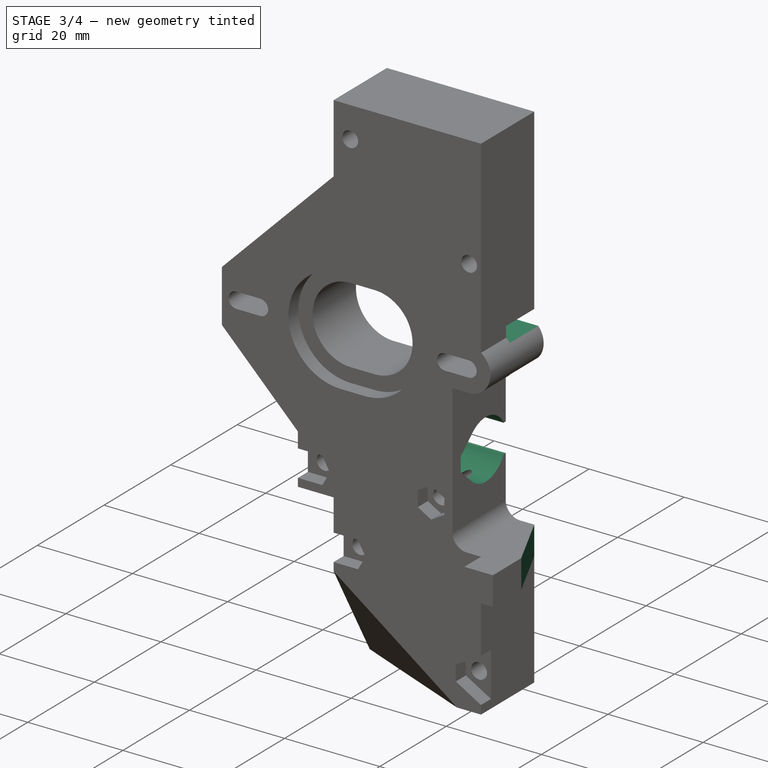
[diagram: stage 3 of 4 — iso view after this stage's code; geometry added in this stage tinted green]
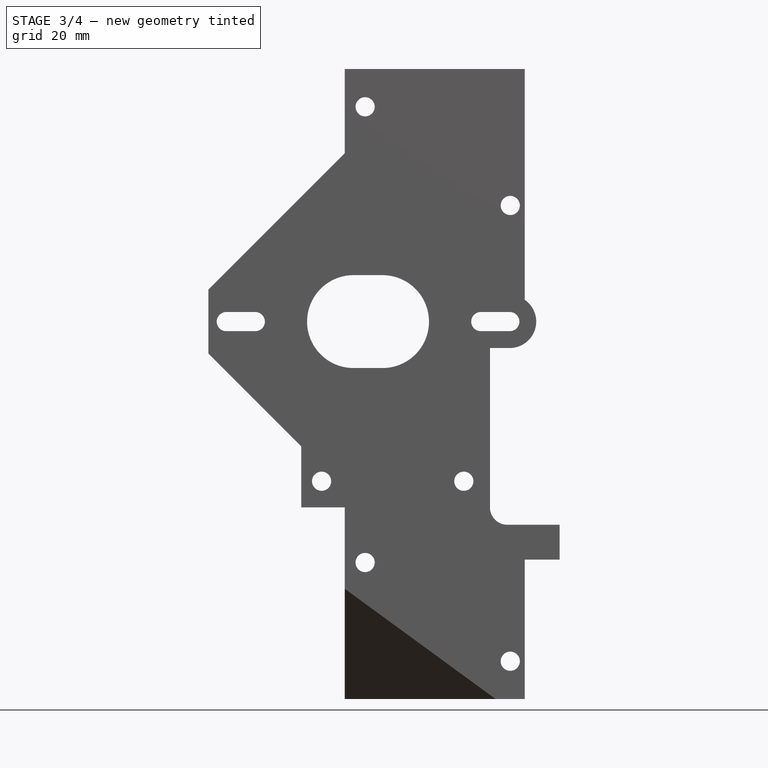
[diagram: stage 3 of 4 — front view after this stage's code; geometry added in this stage tinted green]
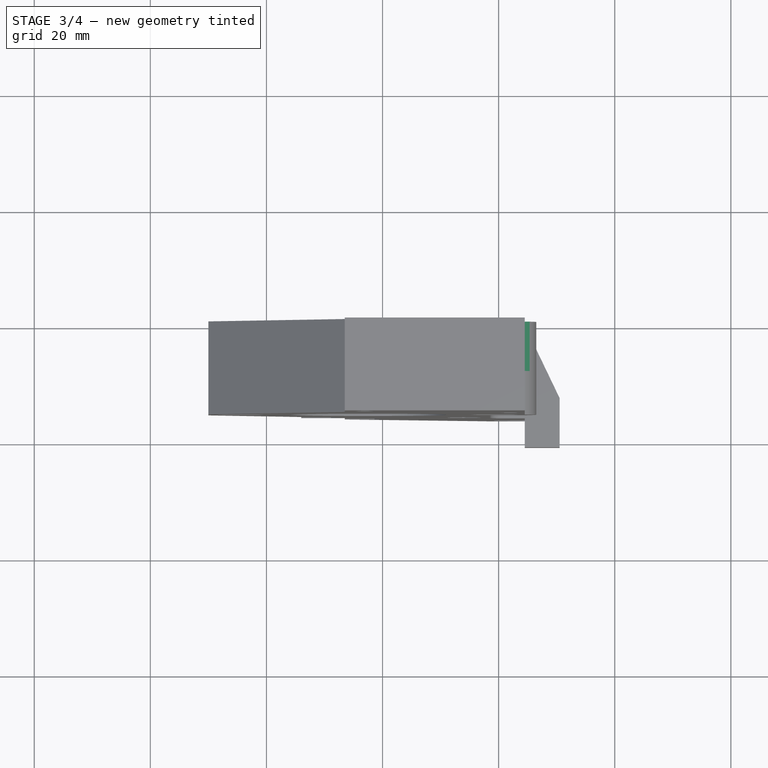
[diagram: stage 3 of 4 — top view after this stage's code; geometry added in this stage tinted green]
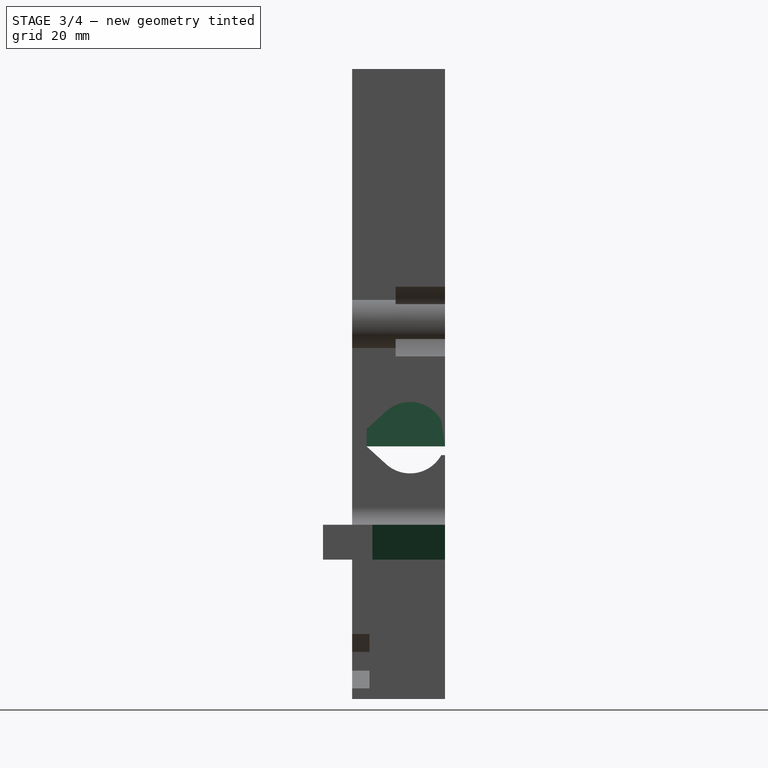
[diagram: stage 3 of 4 — right view after this stage's code; geometry added in this stage tinted green]
FEATURE [Sketcher::SketchObject] Sketch005
  MapMode = 5
  Placement = pos=(0,0,0) rot=(-1,0,0;1.5708rad)
  Support = -> [Pocket002]
  sketch-geometry (8):
    g0: LineSegment StartX=0 StartY=6 StartZ=0 EndX=30 EndY=6 EndZ=0
    g1: LineSegment StartX=30 StartY=6 StartZ=0 EndX=30 EndY=3 EndZ=0
    g2: LineSegment StartX=30 StartY=3 StartZ=0 EndX=0 EndY=3 EndZ=0
    g3: LineSegment StartX=0 StartY=3 StartZ=0 EndX=0 EndY=6 EndZ=0
    g4: LineSegment StartX=0 StartY=-3 StartZ=0 EndX=30 EndY=-3 EndZ=0
    g5: LineSegment StartX=30 StartY=-3 StartZ=0 EndX=30 EndY=-6 EndZ=0
    g6: LineSegment StartX=30 StartY=-6 StartZ=0 EndX=0 EndY=-6 EndZ=0
    g7: LineSegment StartX=0 StartY=-6 StartZ=0 EndX=0 EndY=-3 EndZ=0
  constraints (24):
    c: Coincident(g0,g1)
    c: Coincident(g1,g2)
    c: Coincident(g2,g3)
    c: Coincident(g3,g0)
    c: Horizontal(g0)
    c: Horizontal(g2)
    c: Vertical(g1)
    c: Vertical(g3)
    c: Coincident(g4,g5)
    c: Coincident(g5,g6)
    c: Coincident(g6,g7)
    c: Coincident(g7,g4)
    c: Horizontal(g4)
    c: Horizontal(g6)
    c: Vertical(g5)
    c: Vertical(g7)
    c: PointOnObject(g0,g-2)
    c: PointOnObject(g4,g-2)
    c: Symmetric(g2,g4,g-1)
    c: Symmetric(g0,g6,g-1)
    c: Equal(g2,g4)
    c: Distance(g5,g0) = 12
    c: Distance(g4,g1) = 6
    c: Distance(g0) = 30
FEATURE [PartDesign::Pocket] Pocket003  label="BeltGrooves"
  BaseFeature = -> Pocket002
  Length = 8.5
  Length2 = 100
  Placement = pos=(0,0,0) rot=(1,0,0;1.5708rad)
  Profile = -> Sketch005
  Type = 0
FEATURE [Sketcher::SketchObject] Sketch006
  MapMode = 5
  Placement = pos=(18.5,0,0) rot=(0.707107,0,0.707107;3.14159rad)
  Support = -> [Pocket003]
  expr: Constraints[4] = sheet01.rodcleardia / 2
  sketch-geometry (10):
    g0: GeomPoint X=-20 Y=6 Z=0
    g1: ArcOfCircle CenterX=-20 CenterY=6 CenterZ=0 NormalX=0 NormalY=0 NormalZ=1 AngleXU=0 Radius=6.15 StartAngle=2.40487 EndAngle=4.20282
    g2: ArcOfCircle CenterX=-20 CenterY=6 CenterZ=0 NormalX=0 NormalY=0 NormalZ=1 AngleXU=0 Radius=6.15 StartAngle=5.22196 EndAngle=7.01991
    g3: LineSegment [constr] StartX=-20 StartY=0 StartZ=0 EndX=-20 EndY=20 EndZ=0
    g4: LineSegment StartX=-21.5 StartY=13.5 StartZ=0 EndX=-18.5 EndY=13.5 EndZ=0
    g5: LineSegment StartX=-24.5551 StartY=10.132 StartZ=0 EndX=-21.5 EndY=13.5 EndZ=0
    g6: LineSegment StartX=-18.5 StartY=13.5 StartZ=0 EndX=-15.4449 EndY=10.132 EndZ=0
    g7: LineSegment StartX=-23 StartY=0.631341 StartZ=0 EndX=-23 EndY=-1 EndZ=0
    g8: LineSegment StartX=-23 StartY=-1 StartZ=0 EndX=-17 EndY=-1 EndZ=0
    g9: LineSegment StartX=-17 StartY=-1 StartZ=0 EndX=-17 EndY=0.631341 EndZ=0
  constraints (28):
    c: DistanceY(g-1,g0) = 6
    c: DistanceX(g-2,g0) = -20
    c: Coincident(g1,g0)
    c: Coincident(g2,g0)
    c: Radius(g1) = 6.15
    c: Equal(g1,g2)
    c: PointOnObject(g3,g-1)
    c: Vertical(g3)
    c: PointOnObject(g0,g3)
    c: Distance(g3) = 20
    c: Horizontal(g4)
    c: Symmetric(g4,g4,g3)
    c: Coincident(g6,g4)
    c: Coincident(g5,g4)
    c: Tangent(g5,g1) = 1.5708
    c: Tangent(g6,g2) = 1.5708
    c: DistanceY(g-1,g4) = 13.5
    c: Symmetric(g1,g2,g3)
    c: Distance(g1,g2) = 6
    c: Coincident(g7,g8)
    c: Coincident(g8,g9)
    c: Vertical(g7)
    c: Vertical(g9)
    c: Horizontal(g8)
    c: Coincident(g7,g1)
    c: Coincident(g9,g2)
    c: DistanceY(g-1,g8) = -1
    c: Distance(g4) = 3
FEATURE [PartDesign::Pocket] Pocket004  label="RodHole"
  BaseFeature = -> Pocket003
  Length = 32.5
  Length2 = 100
  Placement = pos=(0,0,0) rot=(1,0,0;1.5708rad)
  Profile = -> Sketch006
  Type = 0
FEATURE [Sketcher::SketchObject] Sketch007
  MapMode = 5
  Placement = pos=(0,4e-12,-41) rot=(1,0,0;3.14159rad)
  Support = -> [Pocket004]
  sketch-geometry (3):
    g0: LineSegment StartX=24.5 StartY=0 StartZ=0 EndX=30.5 EndY=12.5 EndZ=0
    g1: LineSegment StartX=30.5 StartY=12.5 StartZ=0 EndX=30.5 EndY=0 EndZ=0
    g2: LineSegment StartX=30.5 StartY=0 StartZ=0 EndX=24.5 EndY=0 EndZ=0
  constraints (9):
    c: Coincident(g0,g1)
    c: Coincident(g1,g2)
    c: Coincident(g2,g0)
    c: Horizontal(g2)
    c: Vertical(g1)
    c: PointOnObject(g1,g-1)
    c: DistanceY(g-1,g0) = 12.5
    c: Distance(g2) = 6
    c: DistanceX(g-2,g0) = 24.5
FEATURE [PartDesign::Pocket] Pocket005  label="ProximityTriggerCut1"
  BaseFeature = -> Pocket004
  Length = 6
  Length2 = 100
  Placement = pos=(0,0,0) rot=(1,0,0;1.5708rad)
  Profile = -> Sketch007
  Type = 0
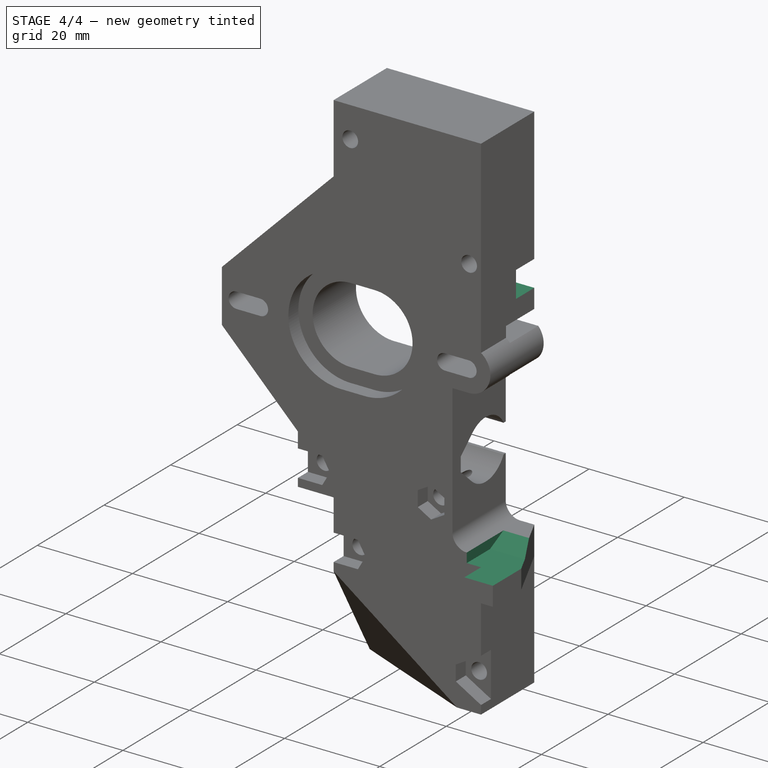
[diagram: stage 4 of 4 — iso view after this stage's code; geometry added in this stage tinted green]
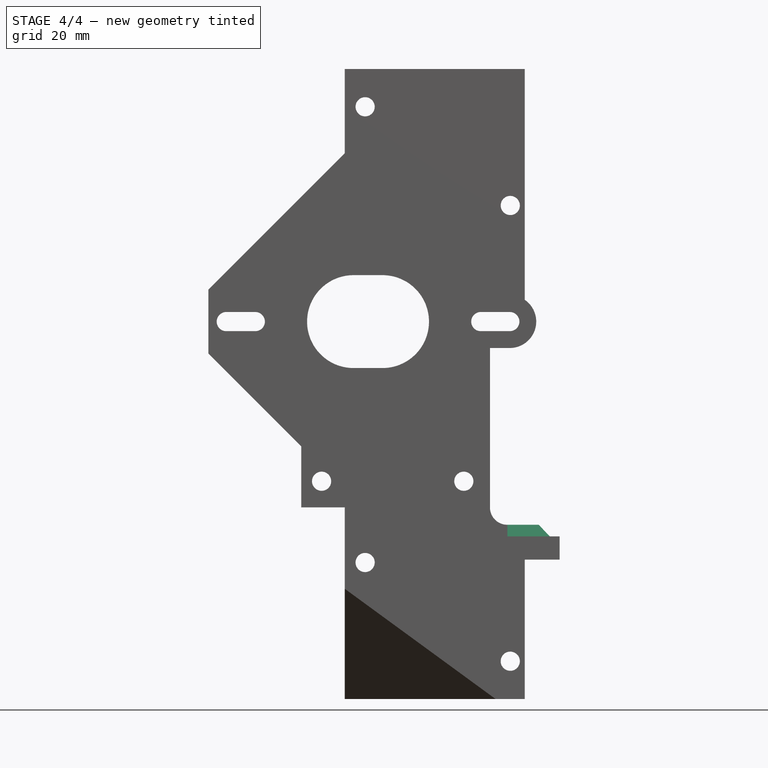
[diagram: stage 4 of 4 — front view after this stage's code; geometry added in this stage tinted green]
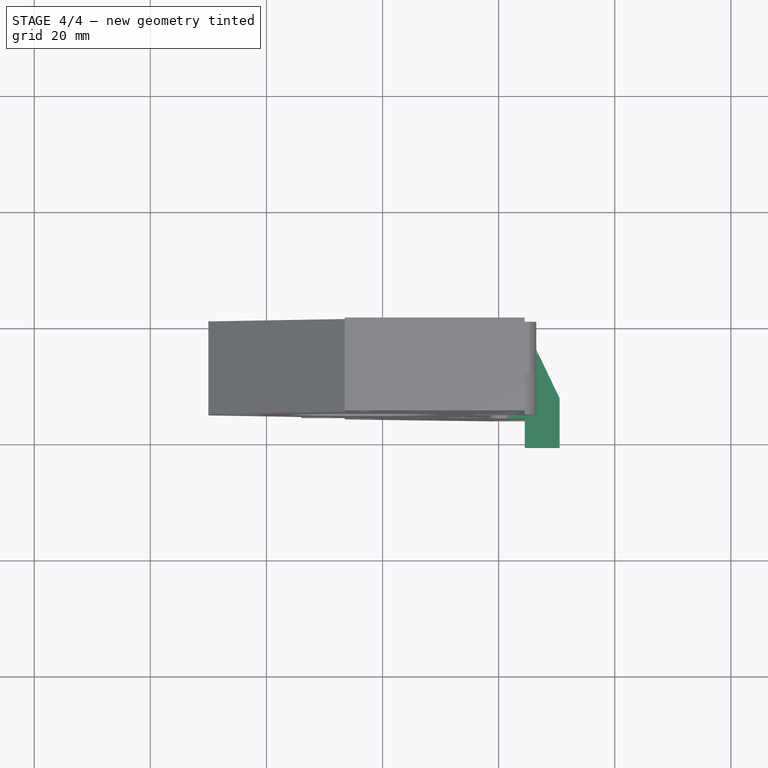
[diagram: stage 4 of 4 — top view after this stage's code; geometry added in this stage tinted green]
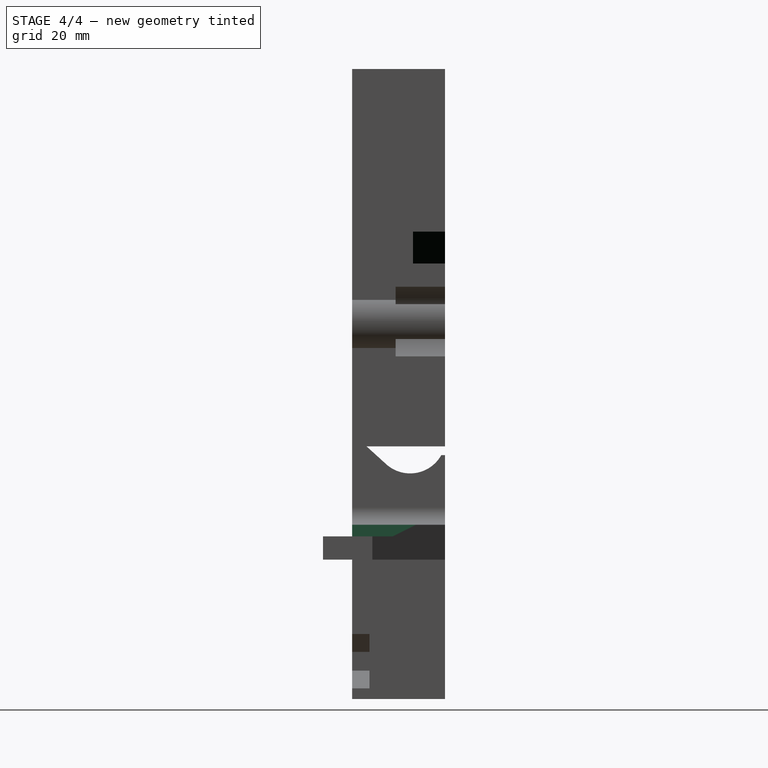
[diagram: stage 4 of 4 — right view after this stage's code; geometry added in this stage tinted green]
FEATURE [Sketcher::SketchObject] Sketch008
  MapMode = 5
  Placement = pos=(30.5,0,0) rot=(0.707107,0,0.707107;3.14159rad)
  Support = -> [Pocket005]
  sketch-geometry (4):
    g0: LineSegment StartX=-37 StartY=21 StartZ=0 EndX=-37 EndY=9 EndZ=0
    g1: LineSegment StartX=-37 StartY=9 StartZ=0 EndX=-35 EndY=5 EndZ=0
    g2: LineSegment StartX=-35 StartY=5 StartZ=0 EndX=-35 EndY=21 EndZ=0
    g3: LineSegment StartX=-35 StartY=21 StartZ=0 EndX=-37 EndY=21 EndZ=0
  constraints (12):
    c: Coincident(g0,g1)
    c: Coincident(g1,g2)
    c: Coincident(g2,g3)
    c: Coincident(g0,g3)
    c: Vertical(g0)
    c: Vertical(g2)
    c: Horizontal(g3)
    c: DistanceX(g-2,g2) = -35
    c: DistanceY(g-1,g2) = 21
    c: Distance(g0) = 12
    c: Distance(g2) = 16
    c: Distance(g3) = 2
FEATURE [PartDesign::Pocket] Pocket006  label="ProximityTriggerCut2"
  BaseFeature = -> Pocket005
  Length = 9
  Length2 = 100
  Placement = pos=(0,0,0) rot=(1,0,0;1.5708rad)
  Profile = -> Sketch008
  Type = 0
FEATURE [Sketcher::SketchObject] Sketch009
  AttachmentOffset = pos=(0,0,10) rot=(0,0,1;0rad)
  MapMode = 5
  Placement = pos=(0,0,10) rot=(0,0,1;0rad)
  Support = -> [XY_Plane]
  sketch-geometry (3):
    g0: LineSegment StartX=19 StartY=0 StartZ=0 EndX=24.5 EndY=-5.5 EndZ=0
    g1: LineSegment StartX=24.5 StartY=-5.5 StartZ=0 EndX=24.5 EndY=0 EndZ=0
    g2: LineSegment StartX=24.5 StartY=0 StartZ=0 EndX=19 EndY=0 EndZ=0
  constraints (9):
    c: Coincident(g0,g1)
    c: Coincident(g1,g2)
    c: Coincident(g2,g0)
    c: Horizontal(g2)
    c: Vertical(g1)
    c: Distance(g2) = 5.5
    c: Distance(g1) = 5.5
    c: PointOnObject(g1,g-1)
    c: DistanceX(g-2,g1) = 24.5
FEATURE [PartDesign::Pocket] Pocket007  label="XRibClearance"
  BaseFeature = -> Pocket006
  Length = 5.5
  Length2 = 100
  Placement = pos=(0,0,0) rot=(1,0,0;1.5708rad)
  Profile = -> Sketch009
  Reversed = true
  Type = 0
FEATURE [PartDesign::Body] Body
  Group = -> [Sketch,Sketch001,Pad,Sketch002,Pocket,Sketch003,Pocket001,Sketch004,Pocket002,Sketch005,Pocket003,Sketch006,Pocket004,Sketch007,Pocket005,Sketch008,Pocket006,Sketch009,Pocket007]
  Origin = -> Origin
  Tip = -> Pocket007
FEATURE [Spreadsheet::Sheet] Spreadsheet  label="sheet01"
  cells = A1=X Offset; A2=Y Offset; A3=Z Offset; A4=M3 Bolt Clearance; B4(m3clear)==3.2999999999999998 / 2; A5=Pulley Clearance; B5(pulleyclear)==16 / 2; A6=Tension dx; B6(tensiondx)=5; A7=Stepper Bolt Diagonal; B7(stepboltdia)==(31 ^ 2 * 2) ^ 0.5; A9=Hole Centres; B9=X; C9=Y; A10=1; B10(hc1x)=-3; C10(hc1y)=37; A11=2; B11(hc2x)=22; C11(hc2y)=20; A12=3; B12(hc3x)=-10.5; C12(hc3y)=-27.5; A13=4; B13(hc4x)=14; C13(hc4y)=-27.5; A14=5; B14(hc5x)=-3; C14(hc5y)=-41.5; A15=6; B15(hc6x)=22; C15(hc6y)=-58.5; A17=Main Body Thickness; B17(mainbodythickness)=16; A18=m3depth; B18(m3depth)=3; A19=prtz; B19(prtz)=21; A20=m3nutspanner; B20(m3nutspanner)=5.5999999999999996; A21=RodZ; B21(rodz)=-21.449999999999999; A22=Rod clear dia; B22(rodcleardia)=12.300000000000001
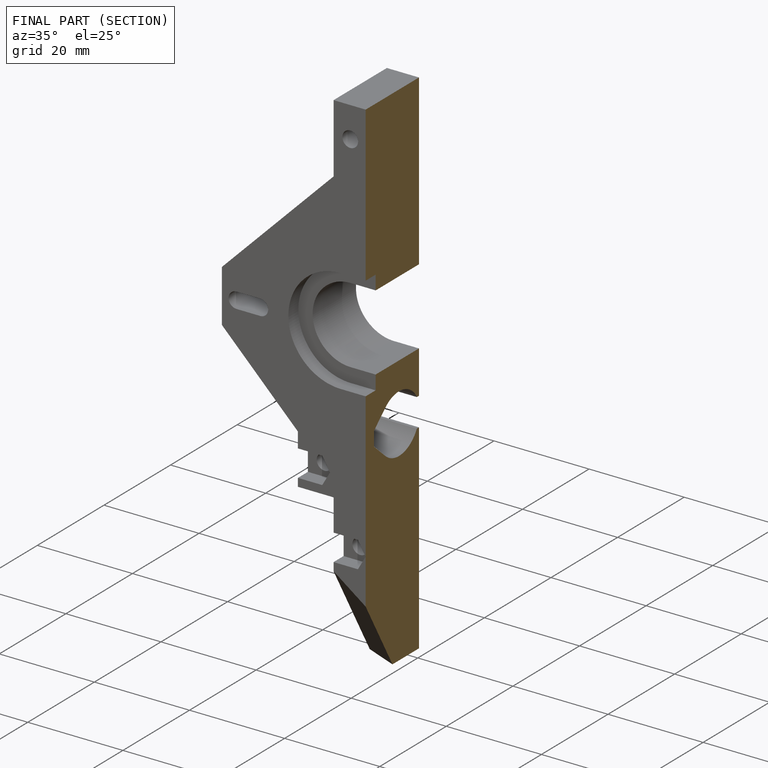
[diagram: finished part — half-section view (interior)]
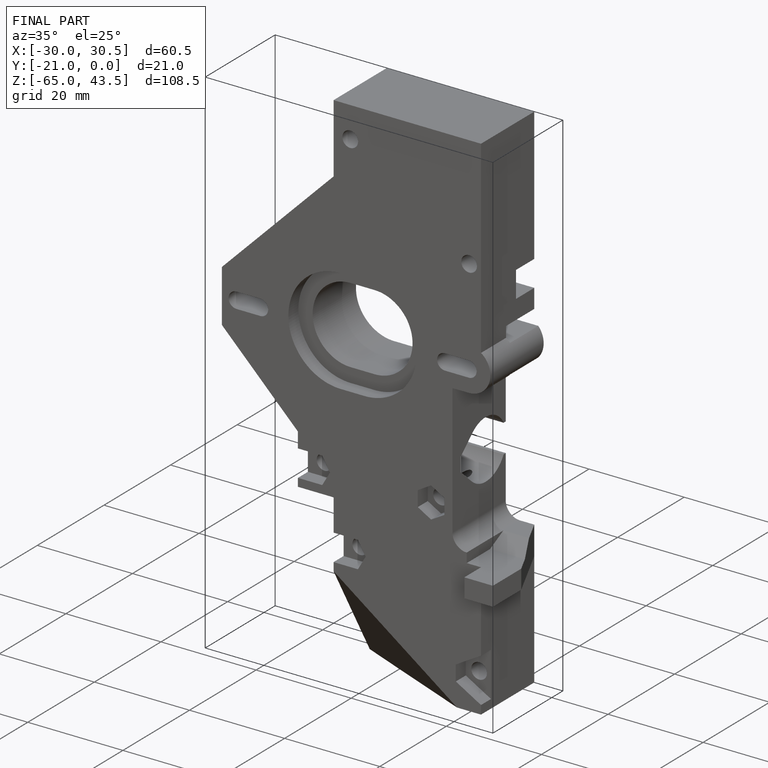
[diagram: finished part — iso view with bounding-box wireframe]
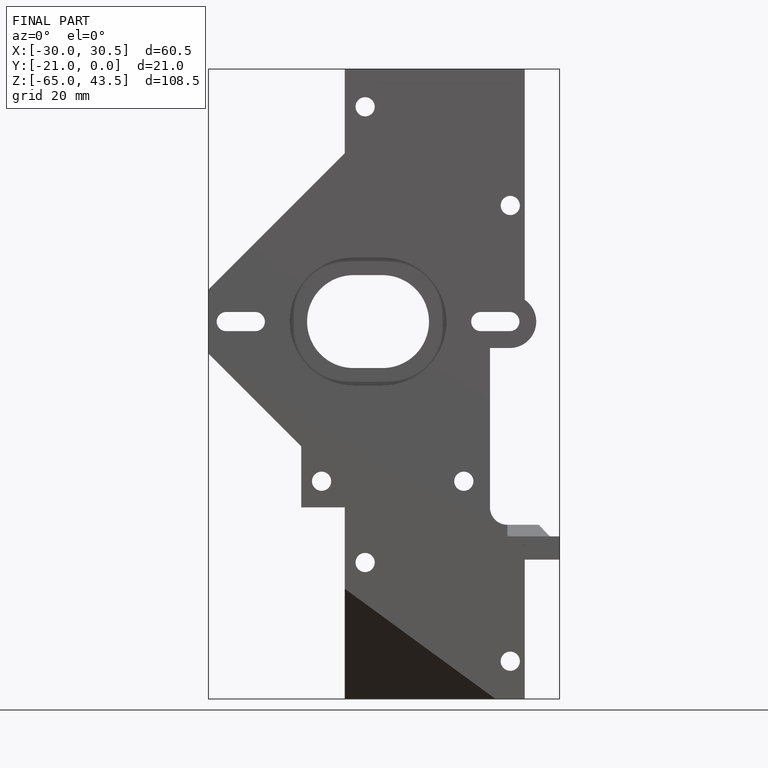
[diagram: finished part — front view with bounding-box wireframe]
